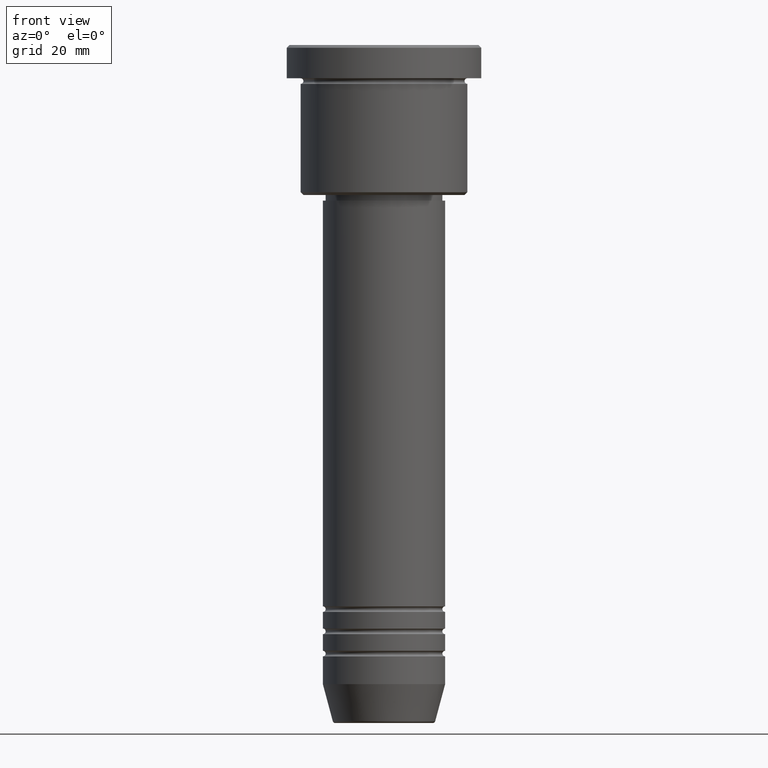
[diagram: clean part render]
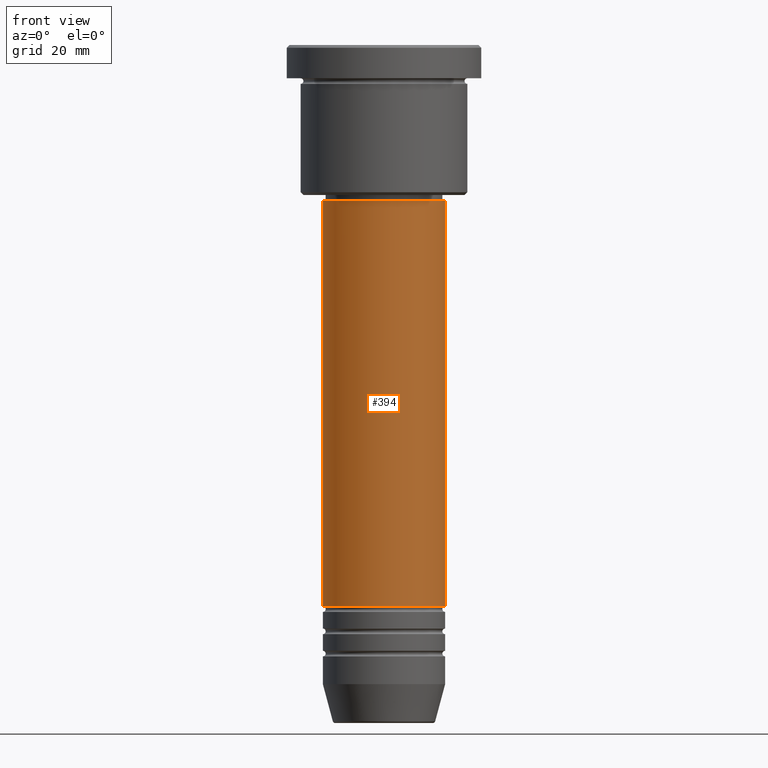
[diagram: same view with one face highlighted and labeled with its STEP entity id]
A machine part, front view. The second image highlights one B-rep face of the part: STEP entity #394.
In plain terms, the highlighted cylindrical surface (partial cylindrical patch) has radius 11 mm, axis along (-0, -0, 1).
Its self-contained STEP definition (entity closure, byte-faithful):
#10 = CARTESIAN_POINT ( 'NONE',  ( 11.00000000000000000, 0.000000000000000000, -100.9999999999999005 ) ) ;
#15 = ORIENTED_EDGE ( 'NONE', *, *, #934, .T. ) ;
#90 = DIRECTION ( 'NONE',  ( 1.000000000000000000, 0.000000000000000000, 0.000000000000000000 ) ) ;
#125 = VERTEX_POINT ( 'NONE', #597 ) ;
#142 = EDGE_CURVE ( 'NONE', #125, #702, #745, .T. ) ;
#152 = CARTESIAN_POINT ( 'NONE',  ( 0.000000000000000000, 0.000000000000000000, -100.9999999999999005 ) ) ;
#193 = CARTESIAN_POINT ( 'NONE',  ( 11.00000000000000000, 0.000000000000000000, -28.00000000000003197 ) ) ;
#223 = EDGE_CURVE ( 'NONE', #125, #487, #902, .T. ) ;
#266 = DIRECTION ( 'NONE',  ( -0.000000000000000000, -0.000000000000000000, 1.000000000000000000 ) ) ;
#280 = VERTEX_POINT ( 'NONE', #193 ) ;
#311 = DIRECTION ( 'NONE',  ( -0.000000000000000000, -0.000000000000000000, 1.000000000000000000 ) ) ;
#335 = EDGE_LOOP ( 'NONE', ( #660, #778, #15, #729 ) ) ;
#345 = AXIS2_PLACEMENT_3D ( 'NONE', #152, #510, #1050 ) ;
#346 = CARTESIAN_POINT ( 'NONE',  ( 11.00000000000000000, 0.000000000000000000, 0.000000000000000000 ) ) ;
#367 = AXIS2_PLACEMENT_3D ( 'NONE', #1123, #311, #662 ) ;
#394 = ADVANCED_FACE ( 'NONE', ( #726 ), #534, .T. ) ;
#487 = VERTEX_POINT ( 'NONE', #698 ) ;
#510 = DIRECTION ( 'NONE',  ( -0.000000000000000000, -0.000000000000000000, 1.000000000000000000 ) ) ;
#514 = VECTOR ( 'NONE', #266, 1000.000000000000000 ) ;
#534 = CYLINDRICAL_SURFACE ( 'NONE', #860, 11.00000000000000000 ) ;
#597 = CARTESIAN_POINT ( 'NONE',  ( -11.00000000000000000, 1.347111479062088405E-15, -100.9999999999999005 ) ) ;
#660 = ORIENTED_EDGE ( 'NONE', *, *, #223, .F. ) ;
#662 = DIRECTION ( 'NONE',  ( 1.000000000000000000, 0.000000000000000000, 0.000000000000000000 ) ) ;
#698 = CARTESIAN_POINT ( 'NONE',  ( -11.00000000000000000, 1.347111479062088405E-15, -28.00000000000003197 ) ) ;
#702 = VERTEX_POINT ( 'NONE', #10 ) ;
#726 = FACE_OUTER_BOUND ( 'NONE', #335, .T. ) ;
#729 = ORIENTED_EDGE ( 'NONE', *, *, #1131, .F. ) ;
#732 = DIRECTION ( 'NONE',  ( -0.000000000000000000, -0.000000000000000000, 1.000000000000000000 ) ) ;
#745 = CIRCLE ( 'NONE', #345, 11.00000000000000000 ) ;
#778 = ORIENTED_EDGE ( 'NONE', *, *, #142, .T. ) ;
#817 = CARTESIAN_POINT ( 'NONE',  ( -11.00000000000000000, 1.347111479062088405E-15, 0.000000000000000000 ) ) ;
#828 = VECTOR ( 'NONE', #1098, 1000.000000000000000 ) ;
#860 = AXIS2_PLACEMENT_3D ( 'NONE', #1103, #732, #90 ) ;
#871 = CIRCLE ( 'NONE', #367, 11.00000000000000000 ) ;
#902 = LINE ( 'NONE', #817, #828 ) ;
#934 = EDGE_CURVE ( 'NONE', #702, #280, #986, .T. ) ;
#986 = LINE ( 'NONE', #346, #514 ) ;
#1050 = DIRECTION ( 'NONE',  ( 1.000000000000000000, 0.000000000000000000, 0.000000000000000000 ) ) ;
#1098 = DIRECTION ( 'NONE',  ( -0.000000000000000000, -0.000000000000000000, 1.000000000000000000 ) ) ;
#1103 = CARTESIAN_POINT ( 'NONE',  ( 0.000000000000000000, 0.000000000000000000, 0.000000000000000000 ) ) ;
#1123 = CARTESIAN_POINT ( 'NONE',  ( 0.000000000000000000, 0.000000000000000000, -28.00000000000003197 ) ) ;
#1131 = EDGE_CURVE ( 'NONE', #487, #280, #871, .T. ) ;